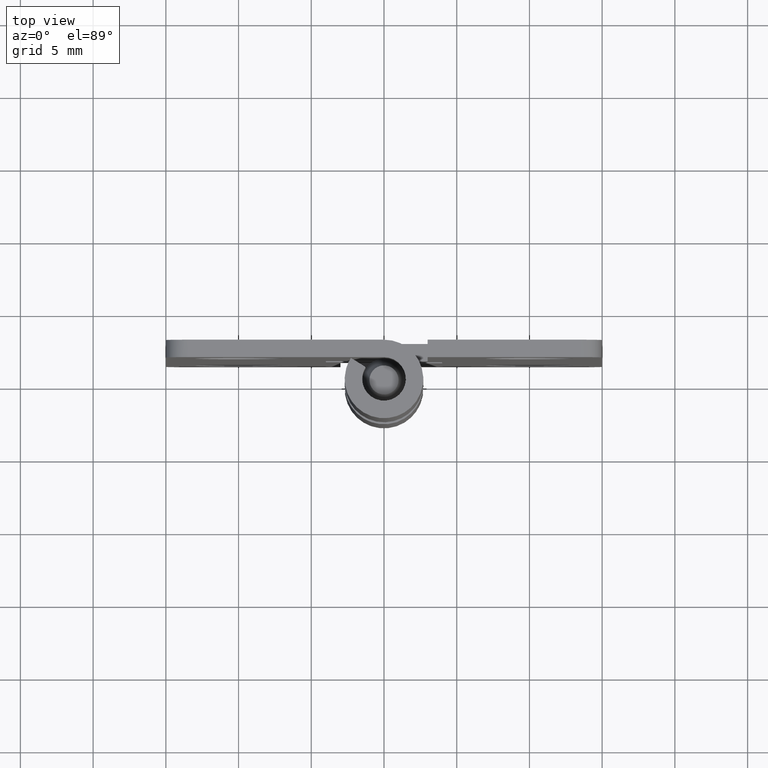
[diagram: clean part render]
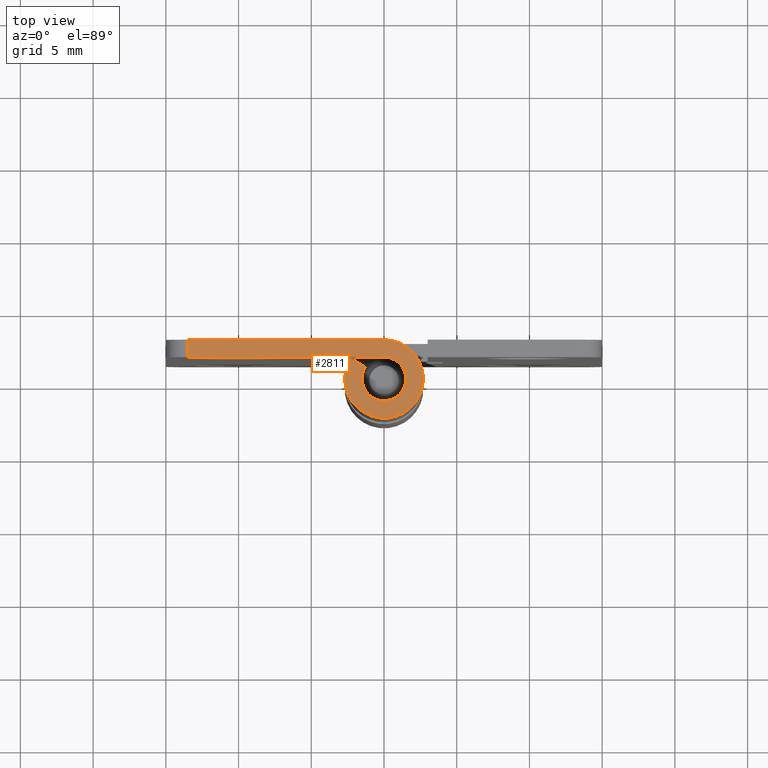
[diagram: same view with one face highlighted and labeled with its STEP entity id]
A machine part, top view. The second image highlights one B-rep face of the part: STEP entity #2811.
In plain terms, the highlighted face is a freeform B-spline surface patch.
Its self-contained STEP definition (entity closure, byte-faithful):
#2634=CARTESIAN_POINT('',(-13.500000000000000,1.500000000000000,40.0));
#2635=VERTEX_POINT('',#2634);
#2651=CARTESIAN_POINT('',(-13.500000000000000,2.700001000000000,40.0));
#2652=VERTEX_POINT('',#2651);
#2653=CARTESIAN_POINT('',(-13.500000000000000,2.700001000000000,40.0));
#2654=CARTESIAN_POINT('',(-13.500000000000000,1.500000000000000,40.0));
#2655=QUASI_UNIFORM_CURVE('',1,(#2653,#2654),.UNSPECIFIED.,.F.,.U.);
#2656=EDGE_CURVE('',#2652,#2635,#2655,.T.);
#2742=CARTESIAN_POINT('',(-14.309178639653950,-2.968773600185018,40.0));
#2743=CARTESIAN_POINT('',(3.508952268405014,-2.968773600185018,40.0));
#2744=CARTESIAN_POINT('',(-14.309178639653950,2.969685682949799,40.0));
#2745=CARTESIAN_POINT('',(3.508952268405014,2.969685682949799,40.0));
#2746=B_SPLINE_SURFACE_WITH_KNOTS('',1,1,((#2742,#2744),(#2743,#2745)),.UNSPECIFIED.,.F.,.F.,.U.,(2,2),(2,2),(0.0,17.818130908058961),(0.0,5.938459283134817),.UNSPECIFIED.);
#2747=CARTESIAN_POINT('',(-1.776357E-015,2.700001000000000,40.0));
#2748=VERTEX_POINT('',#2747);
#2749=CARTESIAN_POINT('',(-13.500000000000000,2.700001000000000,40.0));
#2750=CARTESIAN_POINT('',(-1.776357E-015,2.700001000000000,40.0));
#2751=QUASI_UNIFORM_CURVE('',1,(#2749,#2750),.UNSPECIFIED.,.F.,.U.);
#2752=EDGE_CURVE('',#2652,#2748,#2751,.T.);
#2753=ORIENTED_EDGE('',*,*,#2752,.F.);
#2754=ORIENTED_EDGE('',*,*,#2656,.T.);
#2755=CARTESIAN_POINT('',(9.184548E-017,1.500000000000000,40.0));
#2756=VERTEX_POINT('',#2755);
#2757=CARTESIAN_POINT('',(9.184548E-017,1.500000000000000,40.0));
#2758=CARTESIAN_POINT('',(-13.500000000000000,1.500000000000000,40.0));
#2759=QUASI_UNIFORM_CURVE('',1,(#2757,#2758),.UNSPECIFIED.,.F.,.U.);
#2760=EDGE_CURVE('',#2756,#2635,#2759,.T.);
#2761=ORIENTED_EDGE('',*,*,#2760,.F.);
#2762=CARTESIAN_POINT('',(-1.265337997103374,0.805555555555555,40.0));
#2763=VERTEX_POINT('',#2762);
#2764=CARTESIAN_POINT('',(0.0,1.500000000000000,40.0));
#2765=CARTESIAN_POINT('',(1.163949987496295,1.499999999999999,39.999999999999993));
#2766=CARTESIAN_POINT('',(1.453008384311226,0.372513939499291,40.0));
#2767=CARTESIAN_POINT('',(1.742066781126156,-0.754972121001418,39.999999999999993));
#2768=CARTESIAN_POINT('',(0.721687836487032,-1.314977819838292,40.0));
#2769=CARTESIAN_POINT('',(-0.298691108152091,-1.874983518675164,39.999999999999993));
#2770=CARTESIAN_POINT('',(-1.094556678899887,-1.025644030195492,40.0));
#2771=CARTESIAN_POINT('',(-1.890422249647682,-0.176304541715818,39.999999999999993));
#2772=CARTESIAN_POINT('',(-1.265337997103375,0.805555555555555,40.0));
#2780=(BOUNDED_CURVE()B_SPLINE_CURVE(2,(#2764,#2765,#2766,#2767,#2768,#2769,#2770,#2771,#2772),.UNSPECIFIED.,.F.,.U.)B_SPLINE_CURVE_WITH_KNOTS((3,2,2,2,3),(0.0,0.250000000000000,0.500000000000000,0.750000000000000,1.0),.UNSPECIFIED.)CURVE()GEOMETRIC_REPRESENTATION_ITEM()RATIONAL_B_SPLINE_CURVE((1.0,0.790045133626194,1.0,0.790045133626194,1.0,0.790045133626194,1.0,0.790045133626194,1.0))REPRESENTATION_ITEM(''));
#2781=EDGE_CURVE('',#2756,#2763,#2780,.T.);
#2782=ORIENTED_EDGE('',*,*,#2781,.T.);
#2783=CARTESIAN_POINT('',(-2.277609238344745,1.450000537037034,40.0));
#2784=VERTEX_POINT('',#2783);
#2785=CARTESIAN_POINT('',(-2.277609238344745,1.450000537037034,40.0));
#2786=CARTESIAN_POINT('',(-1.265337997103374,0.805555555555555,40.0));
#2787=QUASI_UNIFORM_CURVE('',1,(#2785,#2786),.UNSPECIFIED.,.F.,.U.);
#2788=EDGE_CURVE('',#2784,#2763,#2787,.T.);
#2789=ORIENTED_EDGE('',*,*,#2788,.F.);
#2790=CARTESIAN_POINT('',(0.0,2.700001000000000,40.0));
#2791=CARTESIAN_POINT('',(2.095110753459989,2.700001000000000,40.0));
#2792=CARTESIAN_POINT('',(2.615416060432462,0.670525339441352,40.0));
#2793=CARTESIAN_POINT('',(3.135721367404935,-1.358950321117296,40.0));
#2794=CARTESIAN_POINT('',(1.299038586801887,-2.366960952360802,40.0));
#2795=CARTESIAN_POINT('',(-0.537644193801164,-3.374971583604310,40.0));
#2796=CARTESIAN_POINT('',(-1.970202751724245,-1.846159938114575,40.0));
#2797=CARTESIAN_POINT('',(-3.402761309647326,-0.317348292624840,40.0));
#2798=CARTESIAN_POINT('',(-2.277609238344742,1.450000537037033,40.0));
#2806=(BOUNDED_CURVE()B_SPLINE_CURVE(2,(#2790,#2791,#2792,#2793,#2794,#2795,#2796,#2797,#2798),.UNSPECIFIED.,.F.,.U.)B_SPLINE_CURVE_WITH_KNOTS((3,2,2,2,3),(0.0,0.250000000000000,0.500000000000000,0.750000000000000,1.0),.UNSPECIFIED.)CURVE()GEOMETRIC_REPRESENTATION_ITEM()RATIONAL_B_SPLINE_CURVE((1.0,0.790045133626194,1.0,0.790045133626194,1.0,0.790045133626194,1.0,0.790045133626194,1.0))REPRESENTATION_ITEM(''));
#2807=EDGE_CURVE('',#2748,#2784,#2806,.T.);
#2808=ORIENTED_EDGE('',*,*,#2807,.F.);
#2809=EDGE_LOOP('',(#2753,#2754,#2761,#2782,#2789,#2808));
#2810=FACE_OUTER_BOUND('',#2809,.T.);
#2811=ADVANCED_FACE('',(#2810),#2746,.T.);